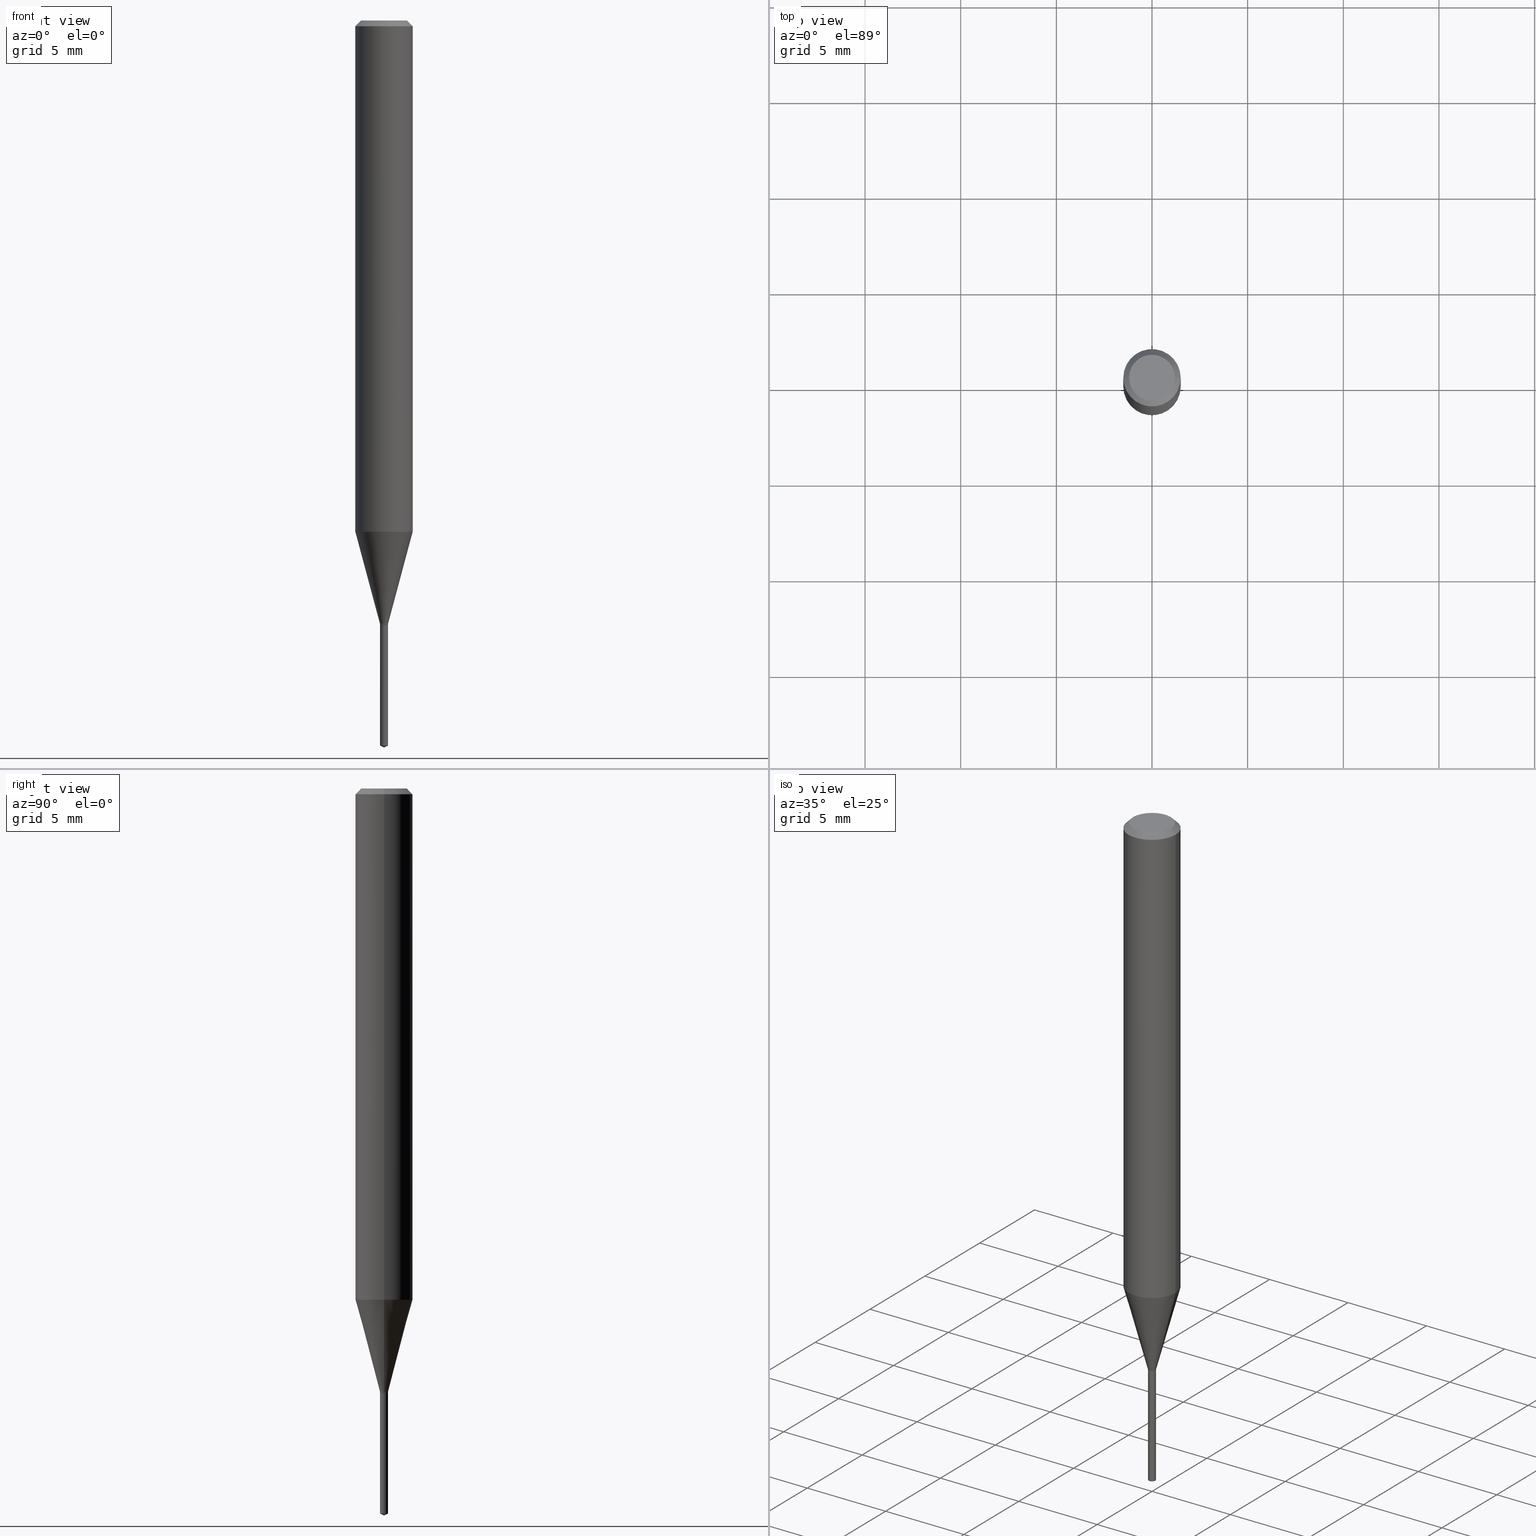
[diagram: canonical four-view strip — front | top / right | iso, engineering-drawing reading convention]
A machine part, canonical four-view strip (front | top / right | iso — engineering-drawing reading convention). The complete STEP part file that produces these views, byte-faithful:
ISO-10303-21;
HEADER;
FILE_DESCRIPTION (( 'STEP AP203' ),
    '1' );
FILE_NAME ('08083.STEP',
    '2024-04-24T10:56:58',
    ( '' ),
    ( '' ),
    'SwSTEP 2.0',
    'SolidWorks 2023',
    '' );
FILE_SCHEMA (( 'CONFIG_CONTROL_DESIGN' ));
ENDSEC;

DATA;
#1 = ORIENTED_EDGE ( 'NONE', *, *, #370, .F. ) ;
#2 = CALENDAR_DATE ( 2024, 24, 4 ) ;
#3 = CARTESIAN_POINT ( 'NONE',  ( -0.007749999999999999944, -4.288684871633349930E-15, -1.244099999999999984 ) ) ;
#4 = EDGE_LOOP ( 'NONE', ( #453, #485, #127 ) ) ;
#5 = AXIS2_PLACEMENT_3D ( 'NONE', #240, #206, #481 ) ;
#6 = CYLINDRICAL_SURFACE ( 'NONE', #276, 0.05905000000000006771 ) ;
#7 = ORIENTED_EDGE ( 'NONE', *, *, #307, .F. ) ;
#8 = ADVANCED_FACE ( 'NONE', ( #123 ), #376, .T. ) ;
#9 = FACE_OUTER_BOUND ( 'NONE', #11, .T. ) ;
#10 = ORIENTED_EDGE ( 'NONE', *, *, #320, .F. ) ;
#11 = EDGE_LOOP ( 'NONE', ( #442, #222, #200, #400 ) ) ;
#12 = EDGE_CURVE ( 'NONE', #68, #466, #229, .T. ) ;
#13 = EDGE_CURVE ( 'NONE', #449, #294, #167, .T. ) ;
#14 = CARTESIAN_POINT ( 'NONE',  ( 0.05904999999999999832, -4.463468013801466955E-16, -0.01181000000000007218 ) ) ;
#15 = DIRECTION ( 'NONE',  ( -2.445468806185136597E-29, 3.491481338843145583E-15, 1.000000000000000000 ) ) ;
#16 = DIRECTION ( 'NONE',  ( -6.982962677686265133E-15, -1.000000000000000000, 0.000000000000000000 ) ) ;
#17 = CARTESIAN_POINT ( 'NONE',  ( 2.888098660104664204E-31, -4.123439461173780263E-17, -0.01181000000000007218 ) ) ;
#18 = AXIS2_PLACEMENT_3D ( 'NONE', #345, #310, #463 ) ;
#19 = VECTOR ( 'NONE', #377, 39.37007874015748143 ) ;
#20 = PRODUCT_DEFINITION_SHAPE ( 'NONE', 'NONE',  #374 ) ;
#21 = DIRECTION ( 'NONE',  ( -2.445468806185136597E-29, 3.491481338843145583E-15, 1.000000000000000000 ) ) ;
#22 =( CONVERSION_BASED_UNIT ( 'INCH', #355 ) LENGTH_UNIT ( ) NAMED_UNIT ( #348 ) );
#23 = EDGE_CURVE ( 'NONE', #462, #70, #383, .T. ) ;
#24 = EDGE_CURVE ( 'NONE', #186, #271, #382, .T. ) ;
#25 = CIRCLE ( 'NONE', #337, 0.05904999999999999832 ) ;
#26 = AXIS2_PLACEMENT_3D ( 'NONE', #122, #197, #272 ) ;
#27 = APPLICATION_PROTOCOL_DEFINITION ( 'international standard', 'config_control_design', 1994, #297 ) ;
#28 = DIRECTION ( 'NONE',  ( -6.328713451373352024E-15, -0.9063077870366461619, 0.4226182617407073239 ) ) ;
#29 = ORIENTED_EDGE ( 'NONE', *, *, #231, .T. ) ;
#30 = DATE_AND_TIME ( #287, #347 ) ;
#31 = CARTESIAN_POINT ( 'NONE',  ( -5.760944209088126808E-17, -0.008250000000004344136, -1.244099999999999984 ) ) ;
#32 = PERSON_AND_ORGANIZATION_ROLE ( 'creator' ) ;
#33 = DIRECTION ( 'NONE',  ( -2.445468806185136597E-29, 3.491481338843145583E-15, 1.000000000000000000 ) ) ;
#34 = DIRECTION ( 'NONE',  ( 2.445468806185136597E-29, -3.491481338843145583E-15, -1.000000000000000000 ) ) ;
#35 = ORIENTED_EDGE ( 'NONE', *, *, #93, .T. ) ;
#36 = SHAPE_DEFINITION_REPRESENTATION ( #20, #432 ) ;
#37 = CARTESIAN_POINT ( 'NONE',  ( 3.042407741774928155E-29, -4.343751933654757151E-15, -1.244099999999999984 ) ) ;
#38 = VERTEX_POINT ( 'NONE', #31 ) ;
#39 = LINE ( 'NONE', #191, #98 ) ;
#40 = EDGE_CURVE ( 'NONE', #271, #160, #25, .T. ) ;
#41 = ORIENTED_EDGE ( 'NONE', *, *, #78, .T. ) ;
#42 = VECTOR ( 'NONE', #95, 39.37007874015748143 ) ;
#43 = DIRECTION ( 'NONE',  ( -2.445468806185136597E-29, 3.491481338843145583E-15, 1.000000000000000000 ) ) ;
#44 = ORIENTED_EDGE ( 'NONE', *, *, #13, .T. ) ;
#45 = DIRECTION ( 'NONE',  ( -2.445453018118844559E-29, 3.491503948252676758E-15, 1.000000000000000000 ) ) ;
#46 = CARTESIAN_POINT ( 'NONE',  ( 2.888098660104664204E-31, -4.123439461173780263E-17, -0.01181000000000007218 ) ) ;
#47 = ADVANCED_FACE ( 'NONE', ( #91 ), #169, .T. ) ;
#48 = ADVANCED_FACE ( 'NONE', ( #177 ), #67, .F. ) ;
#49 = CARTESIAN_POINT ( 'NONE',  ( -9.261901597635378744E-28, 1.322371744356641908E-13, 37.87397874015748300 ) ) ;
#50 = ORIENTED_EDGE ( 'NONE', *, *, #23, .F. ) ;
#51 = CYLINDRICAL_SURFACE ( 'NONE', #72, 0.008250000000000000389 ) ;
#52 = CIRCLE ( 'NONE', #226, 0.008250000000000000389 ) ;
#53 = CARTESIAN_POINT ( 'NONE',  ( 3.042407741774928155E-29, -4.343751933654757151E-15, -1.244099999999999984 ) ) ;
#54 = DIRECTION ( 'NONE',  ( 2.445453018118844559E-29, -3.491503948252676363E-15, -1.000000000000000000 ) ) ;
#55 = CARTESIAN_POINT ( 'NONE',  ( -0.04724000000000000421, 3.504923541997677355E-16, -3.380025165670481712E-19 ) ) ;
#56 = DIRECTION ( 'NONE',  ( -6.982962677686265133E-15, -1.000000000000000000, 0.000000000000000000 ) ) ;
#57 = AXIS2_PLACEMENT_3D ( 'NONE', #318, #142, #388 ) ;
#58 = AXIS2_PLACEMENT_3D ( 'NONE', #223, #34, #217 ) ;
#59 = EDGE_CURVE ( 'NONE', #294, #449, #471, .T. ) ;
#60 = CALENDAR_DATE ( 2024, 24, 4 ) ;
#61 =( NAMED_UNIT ( * ) PLANE_ANGLE_UNIT ( ) SI_UNIT ( $, .RADIAN. ) );
#62 = CARTESIAN_POINT ( 'NONE',  ( 0.008250000000000000389, -4.392632672398560829E-15, -1.241600000000000037 ) ) ;
#63 = VECTOR ( 'NONE', #28, 39.37007874015748854 ) ;
#64 = AXIS2_PLACEMENT_3D ( 'NONE', #233, #21, #474 ) ;
#65 = ORIENTED_EDGE ( 'NONE', *, *, #232, .T. ) ;
#66 = APPROVAL_DATE_TIME ( #317, #303 ) ;
#67 = PLANE ( 'NONE',  #296 ) ;
#68 = VERTEX_POINT ( 'NONE', #278 ) ;
#69 = DIRECTION ( 'NONE',  ( 1.000000000000000000, -6.982962677686266711E-15, 4.876176775795936353E-29 ) ) ;
#70 = VERTEX_POINT ( 'NONE', #212 ) ;
#71 = CARTESIAN_POINT ( 'NONE',  ( 0.000000000000000000, 0.000000000000000000, 0.000000000000000000 ) ) ;
#72 = AXIS2_PLACEMENT_3D ( 'NONE', #129, #202, #265 ) ;
#73 = LOCAL_TIME ( 6, 56, 58.00000000000000000, #254 ) ;
#74 = SECURITY_CLASSIFICATION_LEVEL ( 'unclassified' ) ;
#75 = DIRECTION ( 'NONE',  ( 1.000000000000000000, -6.982962677686266711E-15, 4.876185090822587894E-29 ) ) ;
#76 = ORIENTED_EDGE ( 'NONE', *, *, #107, .F. ) ;
#77 = DIRECTION ( 'NONE',  ( -2.445468806185136597E-29, 3.491481338843145583E-15, 1.000000000000000000 ) ) ;
#78 = EDGE_CURVE ( 'NONE', #466, #488, #327, .T. ) ;
#79 = ORIENTED_EDGE ( 'NONE', *, *, #148, .T. ) ;
#80 = DIRECTION ( 'NONE',  ( -2.445468806185136597E-29, 3.491481338843145583E-15, 1.000000000000000000 ) ) ;
#81 = EDGE_LOOP ( 'NONE', ( #76, #269, #358, #158 ) ) ;
#82 = APPROVAL_PERSON_ORGANIZATION ( #99, #303, #211 ) ;
#83 = MANIFOLD_SOLID_BREP ( 'Body-Move/Copy2[1]', #321 ) ;
#84 = CARTESIAN_POINT ( 'NONE',  ( 3.042407741774928155E-29, -4.343751933654757151E-15, -1.244099999999999984 ) ) ;
#85 = ORIENTED_EDGE ( 'NONE', *, *, #59, .F. ) ;
#86 = EDGE_CURVE ( 'NONE', #299, #462, #435, .T. ) ;
#87 = DIRECTION ( 'NONE',  ( -2.445468806185136877E-29, 3.491481338843145188E-15, 1.000000000000000000 ) ) ;
#88 = VERTEX_POINT ( 'NONE', #390 ) ;
#89 = LINE ( 'NONE', #350, #124 ) ;
#90 = VECTOR ( 'NONE', #166, 39.37007874015748143 ) ;
#91 = FACE_OUTER_BOUND ( 'NONE', #292, .T. ) ;
#92 = CARTESIAN_POINT ( 'NONE',  ( -0.05905000000000006771, 4.195754854663396409E-16, -2.904631170795525045E-30 ) ) ;
#93 = EDGE_CURVE ( 'NONE', #478, #160, #89, .T. ) ;
#94 = CARTESIAN_POINT ( 'NONE',  ( 3.042407741774928155E-29, -4.343751933654757151E-15, -1.244099999999999984 ) ) ;
#95 = DIRECTION ( 'NONE',  ( -2.445468806185136877E-29, 3.491481338843145188E-15, 1.000000000000000000 ) ) ;
#96 = PERSON_AND_ORGANIZATION ( #133, #340 ) ;
#97 = CONICAL_SURFACE ( 'NONE', #64, 0.007749999999999999944, 0.7853981633975496424 ) ;
#98 = VECTOR ( 'NONE', #338, 39.37007874015748143 ) ;
#99 = PERSON_AND_ORGANIZATION ( #133, #340 ) ;
#100 = ORIENTED_EDGE ( 'NONE', *, *, #107, .T. ) ;
#101 = UNCERTAINTY_MEASURE_WITH_UNIT (LENGTH_MEASURE( 1.000000000000000082E-05 ), #22, 'distance_accuracy_value', 'NONE');
#102 = CARTESIAN_POINT ( 'NONE',  ( 2.888098660104664204E-31, -4.123439461173780263E-17, -0.01181000000000007218 ) ) ;
#103 = CLOSED_SHELL ( 'NONE', ( #149, #8, #357, #263, #215, #282, #300, #387, #281, #465, #319, #428 ) ) ;
#104 = CIRCLE ( 'NONE', #309, 0.05905000000000013710 ) ;
#105 = CALENDAR_DATE ( 2024, 24, 4 ) ;
#106 = DIRECTION ( 'NONE',  ( -2.445468806185136597E-29, 3.491481338843145583E-15, 1.000000000000000000 ) ) ;
#107 = EDGE_CURVE ( 'NONE', #294, #267, #484, .T. ) ;
#108 = EDGE_LOOP ( 'NONE', ( #118, #175, #408, #283 ) ) ;
#109 = PERSON_AND_ORGANIZATION_ROLE ( 'creator' ) ;
#110 = DIRECTION ( 'NONE',  ( 1.000000000000000000, -6.982962677686266711E-15, 4.876176775795935793E-29 ) ) ;
#111 = DATE_TIME_ROLE ( 'classification_date' ) ;
#112 = DIRECTION ( 'NONE',  ( -2.445453018118844559E-29, 3.491503948252676758E-15, 1.000000000000000000 ) ) ;
#113 = EDGE_LOOP ( 'NONE', ( #79, #150 ) ) ;
#114 = EDGE_CURVE ( 'NONE', #88, #466, #274, .T. ) ;
#115 = LOCAL_TIME ( 6, 56, 58.00000000000000000, #119 ) ;
#116 = APPROVAL_ROLE ( '' ) ;
#117 = FACE_OUTER_BOUND ( 'NONE', #108, .T. ) ;
#118 = ORIENTED_EDGE ( 'NONE', *, *, #370, .T. ) ;
#119 = COORDINATED_UNIVERSAL_TIME_OFFSET ( 5, 0, .BEHIND. ) ;
#120 = CARTESIAN_POINT ( 'NONE',  ( 3.036294069759465269E-29, -4.335023230307649634E-15, -1.241600000000000037 ) ) ;
#121 = DIRECTION ( 'NONE',  ( 6.439704144417007476E-15, 0.9063077870366490485, 0.4226182617407009956 ) ) ;
#122 = CARTESIAN_POINT ( 'NONE',  ( -9.261901597635378744E-28, 1.322371744356641908E-13, 37.87397874015748300 ) ) ;
#123 = FACE_OUTER_BOUND ( 'NONE', #302, .T. ) ;
#124 = VECTOR ( 'NONE', #324, 39.37007874015748143 ) ;
#125 = AXIS2_PLACEMENT_3D ( 'NONE', #155, #301, #147 ) ;
#126 = DIRECTION ( 'NONE',  ( 1.000000000000000000, -6.982962677686266711E-15, 4.876185090822587894E-29 ) ) ;
#127 = ORIENTED_EDGE ( 'NONE', *, *, #270, .F. ) ;
#128 = EDGE_LOOP ( 'NONE', ( #213, #227, #363, #305 ) ) ;
#129 = CARTESIAN_POINT ( 'NONE',  ( 3.042407741774928155E-29, -4.343751933654757151E-15, -1.244099999999999984 ) ) ;
#130 = CYLINDRICAL_SURFACE ( 'NONE', #244, 0.008250000000000000389 ) ;
#131 = AXIS2_PLACEMENT_3D ( 'NONE', #264, #198, #380 ) ;
#132 = CC_DESIGN_APPROVAL ( #303, ( #374 ) ) ;
#133 = PERSON ( 'UNSPECIFIED', 'UNSPECIFIED', 'UNSPECIFIED', ('UNSPECIFIED'), ('UNSPECIFIED'), ('UNSPECIFIED') ) ;
#134 = VECTOR ( 'NONE', #361, 39.37007874015748854 ) ;
#135 = DIRECTION ( 'NONE',  ( 1.000000000000000000, -6.982962677686266711E-15, 0.000000000000000000 ) ) ;
#136 = CARTESIAN_POINT ( 'NONE',  ( 2.572662087042671903E-29, -3.673079634195394404E-15, -1.052011818975500779 ) ) ;
#137 = EDGE_CURVE ( 'NONE', #160, #271, #181, .T. ) ;
#138 = AXIS2_PLACEMENT_3D ( 'NONE', #214, #151, #75 ) ;
#139 = APPROVAL_PERSON_ORGANIZATION ( #141, #242, #116 ) ;
#140 = DIRECTION ( 'NONE',  ( -2.445468806185136597E-29, 3.491481338843145583E-15, 1.000000000000000000 ) ) ;
#141 = PERSON_AND_ORGANIZATION ( #133, #340 ) ;
#142 = DIRECTION ( 'NONE',  ( -2.445468806185136597E-29, 3.491481338843145583E-15, 1.000000000000000000 ) ) ;
#143 = CONICAL_SURFACE ( 'NONE', #392, 0.008250000000000000389, 0.2617993877991499074 ) ;
#144 = ORIENTED_EDGE ( 'NONE', *, *, #232, .F. ) ;
#145 = DIRECTION ( 'NONE',  ( -2.445468806185136597E-29, 3.491481338843145583E-15, 1.000000000000000000 ) ) ;
#146 = EDGE_LOOP ( 'NONE', ( #219, #252, #445, #482 ) ) ;
#147 = DIRECTION ( 'NONE',  ( -6.982962677686265133E-15, -1.000000000000000000, 0.000000000000000000 ) ) ;
#148 = EDGE_CURVE ( 'NONE', #38, #488, #430, .T. ) ;
#149 = ADVANCED_FACE ( 'NONE', ( #353 ), #97, .T. ) ;
#150 = ORIENTED_EDGE ( 'NONE', *, *, #307, .T. ) ;
#151 = DIRECTION ( 'NONE',  ( -2.445468806185136597E-29, 3.491481338843145583E-15, 1.000000000000000000 ) ) ;
#152 = ORIENTED_EDGE ( 'NONE', *, *, #231, .F. ) ;
#153 = CC_DESIGN_PERSON_AND_ORGANIZATION_ASSIGNMENT ( #289, #405, ( #173 ) ) ;
#154 = PERSON_AND_ORGANIZATION_ROLE ( 'classification_officer' ) ;
#155 = CARTESIAN_POINT ( 'NONE',  ( 3.042407741774928155E-29, -4.343751933654757151E-15, -1.244099999999999984 ) ) ;
#156 = ORIENTED_EDGE ( 'NONE', *, *, #40, .T. ) ;
#157 = PLANE ( 'NONE',  #446 ) ;
#158 = ORIENTED_EDGE ( 'NONE', *, *, #170, .F. ) ;
#159 = CC_DESIGN_PERSON_AND_ORGANIZATION_ASSIGNMENT ( #455, #154, ( #378 ) ) ;
#160 = VERTEX_POINT ( 'NONE', #210 ) ;
#161 = AXIS2_PLACEMENT_3D ( 'NONE', #251, #487, #126 ) ;
#162 = CARTESIAN_POINT ( 'NONE',  ( 0.05905000000000006771, -4.123439461173745257E-16, 2.879382386107503723E-30 ) ) ;
#163 = VERTEX_POINT ( 'NONE', #385 ) ;
#164 = LINE ( 'NONE', #433, #63 ) ;
#165 = FACE_OUTER_BOUND ( 'NONE', #461, .T. ) ;
#166 = DIRECTION ( 'NONE',  ( -2.445453018118844278E-29, 3.491503948252676363E-15, 1.000000000000000000 ) ) ;
#167 = CIRCLE ( 'NONE', #131, 0.008250000000000000389 ) ;
#168 = AXIS2_PLACEMENT_3D ( 'NONE', #260, #112, #371 ) ;
#169 = CYLINDRICAL_SURFACE ( 'NONE', #328, 0.008250000000000000389 ) ;
#170 = EDGE_CURVE ( 'NONE', #267, #163, #275, .T. ) ;
#171 = MECHANICAL_CONTEXT ( 'NONE', #246, 'mechanical' ) ;
#172 = VECTOR ( 'NONE', #304, 39.37007874015748143 ) ;
#173 = PRODUCT_DEFINITION_FORMATION_WITH_SPECIFIED_SOURCE ( 'ANY', '', #436, .NOT_KNOWN. ) ;
#174 = FACE_OUTER_BOUND ( 'NONE', #146, .T. ) ;
#175 = ORIENTED_EDGE ( 'NONE', *, *, #452, .T. ) ;
#176 = EDGE_CURVE ( 'NONE', #68, #88, #164, .T. ) ;
#177 = FACE_OUTER_BOUND ( 'NONE', #113, .T. ) ;
#178 = ORIENTED_EDGE ( 'NONE', *, *, #247, .T. ) ;
#179 = DESIGN_CONTEXT ( 'detailed design', #297, 'design' ) ;
#180 = DIRECTION ( 'NONE',  ( 1.000000000000000000, -6.982962677686303787E-15, 0.000000000000000000 ) ) ;
#181 = CIRCLE ( 'NONE', #359, 0.05904999999999999832 ) ;
#182 = AXIS2_PLACEMENT_3D ( 'NONE', #37, #187, #342 ) ;
#183 = ORIENTED_EDGE ( 'NONE', *, *, #356, .T. ) ;
#184 = EDGE_CURVE ( 'NONE', #462, #449, #280, .T. ) ;
#185 = CARTESIAN_POINT ( 'NONE',  ( 3.042407741774928155E-29, -4.343751933654757151E-15, -1.244099999999999984 ) ) ;
#186 = VERTEX_POINT ( 'NONE', #241 ) ;
#187 = DIRECTION ( 'NONE',  ( -2.438088387897960049E-29, 3.491481338843145188E-15, 1.000000000000000000 ) ) ;
#188 = CC_DESIGN_DATE_AND_TIME_ASSIGNMENT ( #30, #220, ( #374 ) ) ;
#189 = VERTEX_POINT ( 'NONE', #314 ) ;
#190 = APPROVAL_ROLE ( '' ) ;
#191 = CARTESIAN_POINT ( 'NONE',  ( -5.760944209088126808E-17, -0.008250000000004344136, -1.244099999999999984 ) ) ;
#192 = CIRCLE ( 'NONE', #138, 0.04724000000000000421 ) ;
#193 = ORIENTED_EDGE ( 'NONE', *, *, #203, .F. ) ;
#194 = CC_DESIGN_APPROVAL ( #237, ( #173 ) ) ;
#195 = DIRECTION ( 'NONE',  ( 1.000000000000000000, -6.982962677686264344E-15, 0.000000000000000000 ) ) ;
#196 = ORIENTED_EDGE ( 'NONE', *, *, #24, .F. ) ;
#197 = DIRECTION ( 'NONE',  ( -2.445453018118844559E-29, 3.491503948252676758E-15, 1.000000000000000000 ) ) ;
#198 = DIRECTION ( 'NONE',  ( -2.445468806185136597E-29, 3.491481338843145583E-15, 1.000000000000000000 ) ) ;
#199 = FACE_OUTER_BOUND ( 'NONE', #128, .T. ) ;
#200 = ORIENTED_EDGE ( 'NONE', *, *, #443, .T. ) ;
#201 = VECTOR ( 'NONE', #87, 39.37007874015748143 ) ;
#202 = DIRECTION ( 'NONE',  ( -2.445453018118844559E-29, 3.491503948252676758E-15, 1.000000000000000000 ) ) ;
#203 = EDGE_CURVE ( 'NONE', #449, #163, #468, .T. ) ;
#204 = CARTESIAN_POINT ( 'NONE',  ( 3.042407741774928155E-29, -4.343751933654757151E-15, -1.244099999999999984 ) ) ;
#205 = CARTESIAN_POINT ( 'NONE',  ( 0.007749999999999999944, -4.397869894406826129E-15, -1.244099999999999984 ) ) ;
#206 = DIRECTION ( 'NONE',  ( -2.445453018118844559E-29, 3.491503948252676758E-15, 1.000000000000000000 ) ) ;
#207 = VECTOR ( 'NONE', #426, 39.37007874015748143 ) ;
#208 = AXIS2_PLACEMENT_3D ( 'NONE', #185, #364, #290 ) ;
#209 =( NAMED_UNIT ( * ) SI_UNIT ( $, .STERADIAN. ) SOLID_ANGLE_UNIT ( ) );
#210 = CARTESIAN_POINT ( 'NONE',  ( -0.05904999999999999832, -1.437581528937225982E-15, -0.01181000000000007218 ) ) ;
#211 = APPROVAL_ROLE ( '' ) ;
#212 = CARTESIAN_POINT ( 'NONE',  ( -0.008250000000000000389, -4.279894935946284521E-15, -1.243600000000000039 ) ) ;
#213 = ORIENTED_EDGE ( 'NONE', *, *, #356, .F. ) ;
#214 = CARTESIAN_POINT ( 'NONE',  ( 8.265746106709734507E-48, -1.180129479067563789E-33, -3.380025165646692144E-19 ) ) ;
#215 = ADVANCED_FACE ( 'NONE', ( #174 ), #130, .T. ) ;
#216 = PERSON_AND_ORGANIZATION ( #133, #340 ) ;
#217 = DIRECTION ( 'NONE',  ( -1.000000000000000000, 6.982962677686266711E-15, 0.000000000000000000 ) ) ;
#218 = CONICAL_SURFACE ( 'NONE', #411, 0.007749999999999999944, 0.7853981633975496424 ) ;
#219 = ORIENTED_EDGE ( 'NONE', *, *, #23, .T. ) ;
#220 = DATE_TIME_ROLE ( 'creation_date' ) ;
#221 = CARTESIAN_POINT ( 'NONE',  ( 3.036294069759465269E-29, -4.335023230307649634E-15, -1.241600000000000037 ) ) ;
#222 = ORIENTED_EDGE ( 'NONE', *, *, #170, .T. ) ;
#223 = CARTESIAN_POINT ( 'NONE',  ( 2.888098660104664204E-31, -4.123439461173780263E-17, -0.01181000000000007218 ) ) ;
#224 = EDGE_LOOP ( 'NONE', ( #369, #178, #258, #85 ) ) ;
#225 = DIRECTION ( 'NONE',  ( 1.000000000000000000, -6.982962677686266711E-15, 4.876176775795936353E-29 ) ) ;
#226 = AXIS2_PLACEMENT_3D ( 'NONE', #450, #253, #180 ) ;
#227 = ORIENTED_EDGE ( 'NONE', *, *, #409, .T. ) ;
#228 = DIRECTION ( 'NONE',  ( -2.445468806185136877E-29, 3.491481338843145188E-15, 1.000000000000000000 ) ) ;
#229 = LINE ( 'NONE', #459, #234 ) ;
#230 = ORIENTED_EDGE ( 'NONE', *, *, #148, .F. ) ;
#231 = EDGE_CURVE ( 'NONE', #186, #478, #192, .T. ) ;
#232 = EDGE_CURVE ( 'NONE', #299, #189, #266, .T. ) ;
#233 = CARTESIAN_POINT ( 'NONE',  ( 3.042407741774928155E-29, -4.343751933654757151E-15, -1.244099999999999984 ) ) ;
#234 = VECTOR ( 'NONE', #121, 39.37007874015748854 ) ;
#235 = CONICAL_SURFACE ( 'NONE', #26, 84.42940631927278616, 1.134464013796308901 ) ;
#236 = CARTESIAN_POINT ( 'NONE',  ( 4.132873053354867254E-48, -5.900647395337818946E-34, -1.690012582823346072E-19 ) ) ;
#237 = APPROVAL ( #483, 'UNSPECIFIED' ) ;
#238 = CARTESIAN_POINT ( 'NONE',  ( 0.008250000000000000389, -5.760944209091170086E-17, 4.022845840031647239E-31 ) ) ;
#239 = CARTESIAN_POINT ( 'NONE',  ( 0.008250000000000000389, -4.399615635076248421E-15, -1.243600000000000039 ) ) ;
#240 = CARTESIAN_POINT ( 'NONE',  ( 3.649254151213318741E-29, -5.210178979620655699E-15, -1.492252961820221158 ) ) ;
#241 = CARTESIAN_POINT ( 'NONE',  ( 0.04724000000000000421, -3.852183633974369345E-16, -3.380025165621689721E-19 ) ) ;
#242 = APPROVAL ( #489, 'UNSPECIFIED' ) ;
#243 = AXIS2_PLACEMENT_3D ( 'NONE', #94, #249, #16 ) ;
#244 = AXIS2_PLACEMENT_3D ( 'NONE', #273, #33, #293 ) ;
#245 = PERSON_AND_ORGANIZATION ( #133, #340 ) ;
#246 = APPLICATION_CONTEXT ( 'configuration controlled 3d designs of mechanical parts and assemblies' ) ;
#247 = EDGE_CURVE ( 'NONE', #70, #462, #52, .T. ) ;
#248 = EDGE_LOOP ( 'NONE', ( #44, #100, #1, #193 ) ) ;
#249 = DIRECTION ( 'NONE',  ( -2.445453018118844559E-29, 3.491503948252676758E-15, 1.000000000000000000 ) ) ;
#250 = ORIENTED_EDGE ( 'NONE', *, *, #12, .T. ) ;
#251 = CARTESIAN_POINT ( 'NONE',  ( 8.265746106709734507E-48, -1.180129479067563789E-33, -3.380025165646692144E-19 ) ) ;
#252 = ORIENTED_EDGE ( 'NONE', *, *, #427, .T. ) ;
#253 = DIRECTION ( 'NONE',  ( -2.445468806185136597E-29, 3.491481338843145583E-15, 1.000000000000000000 ) ) ;
#254 = COORDINATED_UNIVERSAL_TIME_OFFSET ( 5, 0, .BEHIND. ) ;
#255 = CYLINDRICAL_SURFACE ( 'NONE', #431, 0.008250000000000000389 ) ;
#256 = AXIS2_PLACEMENT_3D ( 'NONE', #49, #45, #268 ) ;
#257 = CC_DESIGN_SECURITY_CLASSIFICATION ( #378, ( #173 ) ) ;
#258 = ORIENTED_EDGE ( 'NONE', *, *, #184, .T. ) ;
#259 = DATE_AND_TIME ( #334, #73 ) ;
#260 = CARTESIAN_POINT ( 'NONE',  ( 3.649254151213318741E-29, -5.210178979620655699E-15, -1.492252961820221158 ) ) ;
#261 = ORIENTED_EDGE ( 'NONE', *, *, #270, .T. ) ;
#262 = CARTESIAN_POINT ( 'NONE',  ( -0.008250000000000000389, -4.279894935946284521E-15, -1.241600000000000037 ) ) ;
#263 = ADVANCED_FACE ( 'NONE', ( #295 ), #354, .T. ) ;
#264 = CARTESIAN_POINT ( 'NONE',  ( 3.036294069759465269E-29, -4.335023230307649634E-15, -1.241600000000000037 ) ) ;
#265 = DIRECTION ( 'NONE',  ( -6.982962677686265133E-15, -1.000000000000000000, 0.000000000000000000 ) ) ;
#266 = CIRCLE ( 'NONE', #208, 0.007749999999999999944 ) ;
#267 = VERTEX_POINT ( 'NONE', #332 ) ;
#268 = DIRECTION ( 'NONE',  ( -6.982962677686268288E-15, -1.000000000000000000, 3.520397390770518557E-15 ) ) ;
#269 = ORIENTED_EDGE ( 'NONE', *, *, #59, .T. ) ;
#270 = EDGE_CURVE ( 'NONE', #466, #88, #316, .T. ) ;
#271 = VERTEX_POINT ( 'NONE', #457 ) ;
#272 = DIRECTION ( 'NONE',  ( -6.982962677686268288E-15, -1.000000000000000000, 3.520397390770518557E-15 ) ) ;
#273 = CARTESIAN_POINT ( 'NONE',  ( 0.000000000000000000, 0.000000000000000000, 0.000000000000000000 ) ) ;
#274 = CIRCLE ( 'NONE', #5, 0.008250000000000000389 ) ;
#275 = CIRCLE ( 'NONE', #395, 0.05905000000000013710 ) ;
#276 = AXIS2_PLACEMENT_3D ( 'NONE', #460, #80, #225 ) ;
#277 = FACE_OUTER_BOUND ( 'NONE', #322, .T. ) ;
#278 = CARTESIAN_POINT ( 'NONE',  ( 3.658642260407602849E-29, -5.223639056980828932E-15, -1.496099999999999985 ) ) ;
#279 = PRODUCT_RELATED_PRODUCT_CATEGORY ( 'detail', '', ( #436 ) ) ;
#280 = LINE ( 'NONE', #238, #42 ) ;
#281 = ADVANCED_FACE ( 'NONE', ( #490 ), #384, .T. ) ;
#282 = ADVANCED_FACE ( 'NONE', ( #416 ), #255, .T. ) ;
#283 = ORIENTED_EDGE ( 'NONE', *, *, #443, .F. ) ;
#284 = CC_DESIGN_PERSON_AND_ORGANIZATION_ASSIGNMENT ( #415, #109, ( #173 ) ) ;
#285 = DIRECTION ( 'NONE',  ( 6.982962677686265922E-15, 1.000000000000000000, -3.491503948252676363E-15 ) ) ;
#286 = ORIENTED_EDGE ( 'NONE', *, *, #78, .F. ) ;
#287 = CALENDAR_DATE ( 2024, 24, 4 ) ;
#288 = DIRECTION ( 'NONE',  ( 1.000000000000000000, -6.982962677686243834E-15, 0.000000000000000000 ) ) ;
#289 = PERSON_AND_ORGANIZATION ( #133, #340 ) ;
#290 = DIRECTION ( 'NONE',  ( 1.000000000000000000, -6.982962677686238312E-15, 0.000000000000000000 ) ) ;
#291 = CC_DESIGN_PERSON_AND_ORGANIZATION_ASSIGNMENT ( #96, #437, ( #436 ) ) ;
#292 = EDGE_LOOP ( 'NONE', ( #396, #41, #230, #10 ) ) ;
#293 = DIRECTION ( 'NONE',  ( 1.000000000000000000, -6.982962677686266711E-15, 4.876176775795935793E-29 ) ) ;
#294 = VERTEX_POINT ( 'NONE', #262 ) ;
#295 = FACE_OUTER_BOUND ( 'NONE', #248, .T. ) ;
#296 = AXIS2_PLACEMENT_3D ( 'NONE', #53, #54, #285 ) ;
#297 = APPLICATION_CONTEXT ( 'configuration controlled 3d designs of mechanical parts and assemblies' ) ;
#298 = AXIS2_PLACEMENT_3D ( 'NONE', #475, #441, #480 ) ;
#299 = VERTEX_POINT ( 'NONE', #418 ) ;
#300 = ADVANCED_FACE ( 'NONE', ( #367 ), #143, .T. ) ;
#301 = DIRECTION ( 'NONE',  ( -2.445453018118844559E-29, 3.491503948252676758E-15, 1.000000000000000000 ) ) ;
#302 = EDGE_LOOP ( 'NONE', ( #152, #414, #156, #343 ) ) ;
#303 = APPROVAL ( #393, 'UNSPECIFIED' ) ;
#304 = DIRECTION ( 'NONE',  ( -2.445468806185136877E-29, 3.491481338843145188E-15, 1.000000000000000000 ) ) ;
#305 = ORIENTED_EDGE ( 'NONE', *, *, #247, .F. ) ;
#306 = CARTESIAN_POINT ( 'NONE',  ( 0.008250000000000000389, -4.392632672398560829E-15, -1.241600000000000037 ) ) ;
#307 = EDGE_CURVE ( 'NONE', #488, #38, #397, .T. ) ;
#308 = AXIS2_PLACEMENT_3D ( 'NONE', #46, #423, #336 ) ;
#309 = AXIS2_PLACEMENT_3D ( 'NONE', #402, #43, #195 ) ;
#310 = DIRECTION ( 'NONE',  ( -2.445468806185136597E-29, 3.491481338843145583E-15, 1.000000000000000000 ) ) ;
#311 = DIRECTION ( 'NONE',  ( -1.000000000000000000, 6.982962677686265922E-15, -4.876176775795935793E-29 ) ) ;
#312 = DIRECTION ( 'NONE',  ( 0.7071067811865453523, -7.319954787623248157E-15, -0.7071067811865496822 ) ) ;
#313 = CARTESIAN_POINT ( 'NONE',  ( 3.042407741774928155E-29, -4.343751933654757151E-15, -1.244099999999999984 ) ) ;
#314 = CARTESIAN_POINT ( 'NONE',  ( -0.007749999999999999944, -4.286035644459238729E-15, -1.244099999999999984 ) ) ;
#315 = DIRECTION ( 'NONE',  ( -0.2588190451025211836, 5.211531920934547886E-15, 0.9659258262890679791 ) ) ;
#316 = CIRCLE ( 'NONE', #168, 0.008250000000000000389 ) ;
#317 = DATE_AND_TIME ( #60, #339 ) ;
#318 = CARTESIAN_POINT ( 'NONE',  ( 3.036294069759465269E-29, -4.335023230307649634E-15, -1.241600000000000037 ) ) ;
#319 = ADVANCED_FACE ( 'NONE', ( #454 ), #412, .F. ) ;
#320 = EDGE_CURVE ( 'NONE', #88, #38, #39, .T. ) ;
#321 = CLOSED_SHELL ( 'NONE', ( #47, #451, #479, #407, #48 ) ) ;
#322 = EDGE_LOOP ( 'NONE', ( #341, #250, #419 ) ) ;
#323 = COORDINATED_UNIVERSAL_TIME_OFFSET ( 5, 0, .BEHIND. ) ;
#324 = DIRECTION ( 'NONE',  ( -0.7071067811865453523, 2.468850131082234184E-15, -0.7071067811865496822 ) ) ;
#325 = ORIENTED_EDGE ( 'NONE', *, *, #320, .T. ) ;
#326 = COORDINATED_UNIVERSAL_TIME_OFFSET ( 5, 0, .BEHIND. ) ;
#327 = LINE ( 'NONE', #444, #90 ) ;
#328 = AXIS2_PLACEMENT_3D ( 'NONE', #204, #398, #56 ) ;
#329 = AXIS2_PLACEMENT_3D ( 'NONE', #221, #145, #406 ) ;
#330 = CYLINDRICAL_SURFACE ( 'NONE', #366, 0.05905000000000006771 ) ;
#331 = APPROVAL_DATE_TIME ( #486, #242 ) ;
#332 = CARTESIAN_POINT ( 'NONE',  ( -0.05905000000000013710, -3.253504148729054517E-15, -1.052011818975500779 ) ) ;
#333 = ORIENTED_EDGE ( 'NONE', *, *, #399, .F. ) ;
#334 = CALENDAR_DATE ( 2024, 24, 4 ) ;
#335 = LINE ( 'NONE', #3, #19 ) ;
#336 = DIRECTION ( 'NONE',  ( -1.000000000000000000, 6.982962677686266711E-15, 0.000000000000000000 ) ) ;
#337 = AXIS2_PLACEMENT_3D ( 'NONE', #17, #140, #135 ) ;
#338 = DIRECTION ( 'NONE',  ( -2.445453018118844278E-29, 3.491503948252676363E-15, 1.000000000000000000 ) ) ;
#339 = LOCAL_TIME ( 6, 56, 58.00000000000000000, #323 ) ;
#340 = ORGANIZATION ( 'UNSPECIFIED', 'UNSPECIFIED', '' ) ;
#341 = ORIENTED_EDGE ( 'NONE', *, *, #176, .F. ) ;
#342 = DIRECTION ( 'NONE',  ( 1.000000000000000000, -6.982962677686265922E-15, 4.876176775795935793E-29 ) ) ;
#343 = ORIENTED_EDGE ( 'NONE', *, *, #93, .F. ) ;
#344 = CARTESIAN_POINT ( 'NONE',  ( 5.861977570024480222E-17, 0.008249999999995656641, -1.244099999999999984 ) ) ;
#345 = CARTESIAN_POINT ( 'NONE',  ( 3.041185007371835914E-29, -4.342006192985336437E-15, -1.243600000000000039 ) ) ;
#346 = EDGE_LOOP ( 'NONE', ( #196, #333, #35, #417 ) ) ;
#347 = LOCAL_TIME ( 6, 56, 58.00000000000000000, #326 ) ;
#348 = DIMENSIONAL_EXPONENTS ( 1.000000000000000000, 0.000000000000000000, 0.000000000000000000, 0.000000000000000000, 0.000000000000000000, 0.000000000000000000, 0.000000000000000000 ) ;
#349 = DIRECTION ( 'NONE',  ( -2.445468806185136597E-29, 3.491481338843145583E-15, 1.000000000000000000 ) ) ;
#350 = CARTESIAN_POINT ( 'NONE',  ( -0.05904999999999999832, 3.711095515056362547E-16, -0.01181000000000007218 ) ) ;
#351 = DIRECTION ( 'NONE',  ( -2.445468806185136597E-29, 3.491481338843145583E-15, 1.000000000000000000 ) ) ;
#352 = DIRECTION ( 'NONE',  ( 1.000000000000000000, -6.982962677686238312E-15, 0.000000000000000000 ) ) ;
#353 = FACE_OUTER_BOUND ( 'NONE', #365, .T. ) ;
#354 = CONICAL_SURFACE ( 'NONE', #329, 0.008250000000000000389, 0.2617993877991499074 ) ;
#355 = LENGTH_MEASURE_WITH_UNIT ( LENGTH_MEASURE( 0.02539999999999999897 ), #381 );
#356 = EDGE_CURVE ( 'NONE', #189, #70, #335, .T. ) ;
#357 = ADVANCED_FACE ( 'NONE', ( #117 ), #6, .T. ) ;
#358 = ORIENTED_EDGE ( 'NONE', *, *, #203, .T. ) ;
#359 = AXIS2_PLACEMENT_3D ( 'NONE', #102, #351, #473 ) ;
#360 = CIRCLE ( 'NONE', #472, 0.007749999999999999944 ) ;
#361 = DIRECTION ( 'NONE',  ( 0.2588190451025211836, 1.565188264969622559E-15, 0.9659258262890679791 ) ) ;
#362 = CARTESIAN_POINT ( 'NONE',  ( -0.008250000000000000389, -4.276403454607441513E-15, -1.241600000000000037 ) ) ;
#363 = ORIENTED_EDGE ( 'NONE', *, *, #86, .T. ) ;
#364 = DIRECTION ( 'NONE',  ( -2.445468806185136597E-29, 3.491481338843145583E-15, 1.000000000000000000 ) ) ;
#365 = EDGE_LOOP ( 'NONE', ( #65, #183, #50, #424 ) ) ;
#366 = AXIS2_PLACEMENT_3D ( 'NONE', #448, #106, #69 ) ;
#367 = FACE_OUTER_BOUND ( 'NONE', #81, .T. ) ;
#368 = LOCAL_TIME ( 6, 56, 58.00000000000000000, #447 ) ;
#369 = ORIENTED_EDGE ( 'NONE', *, *, #427, .F. ) ;
#370 = EDGE_CURVE ( 'NONE', #163, #267, #104, .T. ) ;
#371 = DIRECTION ( 'NONE',  ( -6.982962677686265133E-15, -1.000000000000000000, 0.000000000000000000 ) ) ;
#372 = ORIENTED_EDGE ( 'NONE', *, *, #409, .F. ) ;
#373 = DIRECTION ( 'NONE',  ( -2.445468806185136597E-29, 3.491481338843145583E-15, 1.000000000000000000 ) ) ;
#374 = PRODUCT_DEFINITION ( 'UNKNOWN', '', #173, #179 ) ;
#375 = ORIENTED_EDGE ( 'NONE', *, *, #399, .T. ) ;
#376 = CONICAL_SURFACE ( 'NONE', #308, 0.05904999999999999832, 0.7853981633974452814 ) ;
#377 = DIRECTION ( 'NONE',  ( -0.7071067811866191821, 7.493145998870612907E-15, 0.7071067811864758523 ) ) ;
#378 = SECURITY_CLASSIFICATION ( '', '', #74 ) ;
#379 = EDGE_LOOP ( 'NONE', ( #375, #29 ) ) ;
#380 = DIRECTION ( 'NONE',  ( 1.000000000000000000, -6.982962677686243834E-15, 0.000000000000000000 ) ) ;
#381 =( LENGTH_UNIT ( ) NAMED_UNIT ( * ) SI_UNIT ( $, .METRE. ) );
#382 = LINE ( 'NONE', #14, #420 ) ;
#383 = CIRCLE ( 'NONE', #18, 0.008250000000000000389 ) ;
#384 = CONICAL_SURFACE ( 'NONE', #58, 0.05904999999999999832, 0.7853981633974452814 ) ;
#385 = CARTESIAN_POINT ( 'NONE',  ( 0.05905000000000013710, -4.085423580312769324E-15, -1.052011818975500779 ) ) ;
#386 = CARTESIAN_POINT ( 'NONE',  ( 5.861977570024476524E-17, 0.008249999999994791014, -1.492252961820221158 ) ) ;
#387 = ADVANCED_FACE ( 'NONE', ( #9 ), #330, .T. ) ;
#388 = DIRECTION ( 'NONE',  ( 1.000000000000000000, -6.982962677686243834E-15, 0.000000000000000000 ) ) ;
#389 = FACE_OUTER_BOUND ( 'NONE', #4, .T. ) ;
#390 = CARTESIAN_POINT ( 'NONE',  ( -5.760944209087521604E-17, -0.008250000000005211498, -1.492252961820221158 ) ) ;
#391 = VECTOR ( 'NONE', #315, 39.37007874015748854 ) ;
#392 = AXIS2_PLACEMENT_3D ( 'NONE', #120, #77, #288 ) ;
#393 = APPROVAL_STATUS ( 'not_yet_approved' ) ;
#394 = DIRECTION ( 'NONE',  ( -2.445468806185136597E-29, 3.491481338843145583E-15, 1.000000000000000000 ) ) ;
#395 = AXIS2_PLACEMENT_3D ( 'NONE', #136, #394, #438 ) ;
#396 = ORIENTED_EDGE ( 'NONE', *, *, #114, .T. ) ;
#397 = CIRCLE ( 'NONE', #125, 0.008250000000000000389 ) ;
#398 = DIRECTION ( 'NONE',  ( -2.445453018118844559E-29, 3.491503948252676758E-15, 1.000000000000000000 ) ) ;
#399 = EDGE_CURVE ( 'NONE', #478, #186, #422, .T. ) ;
#400 = ORIENTED_EDGE ( 'NONE', *, *, #137, .F. ) ;
#401 = DATE_AND_TIME ( #2, #368 ) ;
#402 = CARTESIAN_POINT ( 'NONE',  ( 2.572662087042671903E-29, -3.673079634195394404E-15, -1.052011818975500779 ) ) ;
#403 = MANIFOLD_SOLID_BREP ( 'Body-Move/Copy2[2]', #103 ) ;
#404 = EDGE_LOOP ( 'NONE', ( #144, #372 ) ) ;
#405 = PERSON_AND_ORGANIZATION_ROLE ( 'design_supplier' ) ;
#406 = DIRECTION ( 'NONE',  ( 1.000000000000000000, -6.982962677686243834E-15, 0.000000000000000000 ) ) ;
#407 = ADVANCED_FACE ( 'NONE', ( #165 ), #51, .T. ) ;
#408 = ORIENTED_EDGE ( 'NONE', *, *, #40, .F. ) ;
#409 = EDGE_CURVE ( 'NONE', #189, #299, #360, .T. ) ;
#410 = APPROVAL_DATE_TIME ( #259, #237 ) ;
#411 = AXIS2_PLACEMENT_3D ( 'NONE', #84, #15, #352 ) ;
#412 = PLANE ( 'NONE',  #182 ) ;
#413 = APPROVAL_PERSON_ORGANIZATION ( #216, #237, #190 ) ;
#414 = ORIENTED_EDGE ( 'NONE', *, *, #24, .T. ) ;
#415 = PERSON_AND_ORGANIZATION ( #133, #340 ) ;
#416 = FACE_OUTER_BOUND ( 'NONE', #224, .T. ) ;
#417 = ORIENTED_EDGE ( 'NONE', *, *, #137, .T. ) ;
#418 = CARTESIAN_POINT ( 'NONE',  ( 0.007749999999999999944, -4.397869894406826129E-15, -1.244099999999999984 ) ) ;
#419 = ORIENTED_EDGE ( 'NONE', *, *, #114, .F. ) ;
#420 = VECTOR ( 'NONE', #312, 39.37007874015748143 ) ;
#421 = FACE_OUTER_BOUND ( 'NONE', #379, .T. ) ;
#422 = CIRCLE ( 'NONE', #161, 0.04724000000000000421 ) ;
#423 = DIRECTION ( 'NONE',  ( 2.445468806185136597E-29, -3.491481338843145583E-15, -1.000000000000000000 ) ) ;
#424 = ORIENTED_EDGE ( 'NONE', *, *, #86, .F. ) ;
#425 = DIRECTION ( 'NONE',  ( 1.000000000000000000, -6.982962677686238312E-15, 0.000000000000000000 ) ) ;
#426 = DIRECTION ( 'NONE',  ( 0.7071067811866191821, -2.468850131083007662E-15, 0.7071067811864758523 ) ) ;
#427 = EDGE_CURVE ( 'NONE', #70, #294, #429, .T. ) ;
#428 = ADVANCED_FACE ( 'NONE', ( #199 ), #218, .T. ) ;
#429 = LINE ( 'NONE', #464, #172 ) ;
#430 = CIRCLE ( 'NONE', #243, 0.008250000000000000389 ) ;
#431 = AXIS2_PLACEMENT_3D ( 'NONE', #71, #373, #110 ) ;
#432 = ADVANCED_BREP_SHAPE_REPRESENTATION ( '08083', ( #83, #403, #298 ), #456 ) ;
#433 = CARTESIAN_POINT ( 'NONE',  ( 3.658642260407602849E-29, -5.223639056980828932E-15, -1.496099999999999985 ) ) ;
#434 = LINE ( 'NONE', #92, #201 ) ;
#435 = LINE ( 'NONE', #205, #207 ) ;
#436 = PRODUCT ( '08083', '08083', '', ( #171 ) ) ;
#437 = PERSON_AND_ORGANIZATION_ROLE ( 'design_owner' ) ;
#438 = DIRECTION ( 'NONE',  ( 1.000000000000000000, -6.982962677686264344E-15, 0.000000000000000000 ) ) ;
#439 = APPLICATION_PROTOCOL_DEFINITION ( 'international standard', 'config_control_design', 1994, #246 ) ;
#440 = VECTOR ( 'NONE', #228, 39.37007874015748143 ) ;
#441 = DIRECTION ( 'NONE',  ( 0.000000000000000000, 0.000000000000000000, 1.000000000000000000 ) ) ;
#442 = ORIENTED_EDGE ( 'NONE', *, *, #452, .F. ) ;
#443 = EDGE_CURVE ( 'NONE', #163, #271, #470, .T. ) ;
#444 = CARTESIAN_POINT ( 'NONE',  ( 5.861977570023867622E-17, 0.008249999999995656641, -1.244099999999999984 ) ) ;
#445 = ORIENTED_EDGE ( 'NONE', *, *, #13, .F. ) ;
#446 = AXIS2_PLACEMENT_3D ( 'NONE', #236, #467, #311 ) ;
#447 = COORDINATED_UNIVERSAL_TIME_OFFSET ( 5, 0, .BEHIND. ) ;
#448 = CARTESIAN_POINT ( 'NONE',  ( 0.000000000000000000, 0.000000000000000000, 0.000000000000000000 ) ) ;
#449 = VERTEX_POINT ( 'NONE', #306 ) ;
#450 = CARTESIAN_POINT ( 'NONE',  ( 3.041185007371835914E-29, -4.342006192985336437E-15, -1.243600000000000039 ) ) ;
#451 = ADVANCED_FACE ( 'NONE', ( #277 ), #477, .T. ) ;
#452 = EDGE_CURVE ( 'NONE', #267, #160, #434, .T. ) ;
#453 = ORIENTED_EDGE ( 'NONE', *, *, #12, .F. ) ;
#454 = FACE_OUTER_BOUND ( 'NONE', #404, .T. ) ;
#455 = PERSON_AND_ORGANIZATION ( #133, #340 ) ;
#456 =( GEOMETRIC_REPRESENTATION_CONTEXT ( 3 ) GLOBAL_UNCERTAINTY_ASSIGNED_CONTEXT ( ( #101 ) ) GLOBAL_UNIT_ASSIGNED_CONTEXT ( ( #22, #61, #209 ) ) REPRESENTATION_CONTEXT ( 'NONE', 'WORKASPACE' ) );
#457 = CARTESIAN_POINT ( 'NONE',  ( 0.05904999999999999832, -4.535783407291118600E-16, -0.01181000000000007218 ) ) ;
#458 = CC_DESIGN_APPROVAL ( #242, ( #378 ) ) ;
#459 = CARTESIAN_POINT ( 'NONE',  ( 3.658681888747289821E-29, -5.223582800248033507E-15, -1.496099999999999985 ) ) ;
#460 = CARTESIAN_POINT ( 'NONE',  ( 0.000000000000000000, 0.000000000000000000, 0.000000000000000000 ) ) ;
#461 = EDGE_LOOP ( 'NONE', ( #286, #261, #325, #7 ) ) ;
#462 = VERTEX_POINT ( 'NONE', #239 ) ;
#463 = DIRECTION ( 'NONE',  ( 1.000000000000000000, -6.982962677686303787E-15, 0.000000000000000000 ) ) ;
#464 = CARTESIAN_POINT ( 'NONE',  ( -0.008250000000000000389, 5.861977570020826810E-17, -4.058121449460297368E-31 ) ) ;
#465 = ADVANCED_FACE ( 'NONE', ( #421 ), #157, .F. ) ;
#466 = VERTEX_POINT ( 'NONE', #386 ) ;
#467 = DIRECTION ( 'NONE',  ( 2.438088387897960049E-29, -3.491481338843145188E-15, -1.000000000000000000 ) ) ;
#468 = LINE ( 'NONE', #62, #134 ) ;
#469 = CC_DESIGN_DATE_AND_TIME_ASSIGNMENT ( #401, #111, ( #378 ) ) ;
#470 = LINE ( 'NONE', #162, #440 ) ;
#471 = CIRCLE ( 'NONE', #57, 0.008250000000000000389 ) ;
#472 = AXIS2_PLACEMENT_3D ( 'NONE', #313, #349, #425 ) ;
#473 = DIRECTION ( 'NONE',  ( 1.000000000000000000, -6.982962677686266711E-15, 0.000000000000000000 ) ) ;
#474 = DIRECTION ( 'NONE',  ( 1.000000000000000000, -6.982962677686238312E-15, 0.000000000000000000 ) ) ;
#475 = CARTESIAN_POINT ( 'NONE',  ( 0.000000000000000000, 0.000000000000000000, 0.000000000000000000 ) ) ;
#476 = CC_DESIGN_PERSON_AND_ORGANIZATION_ASSIGNMENT ( #245, #32, ( #374 ) ) ;
#477 = CONICAL_SURFACE ( 'NONE', #256, 84.42940631927278616, 1.134464013796308901 ) ;
#478 = VERTEX_POINT ( 'NONE', #55 ) ;
#479 = ADVANCED_FACE ( 'NONE', ( #389 ), #235, .T. ) ;
#480 = DIRECTION ( 'NONE',  ( 1.000000000000000000, 0.000000000000000000, 0.000000000000000000 ) ) ;
#481 = DIRECTION ( 'NONE',  ( -6.982962677686265133E-15, -1.000000000000000000, 0.000000000000000000 ) ) ;
#482 = ORIENTED_EDGE ( 'NONE', *, *, #184, .F. ) ;
#483 = APPROVAL_STATUS ( 'not_yet_approved' ) ;
#484 = LINE ( 'NONE', #362, #391 ) ;
#485 = ORIENTED_EDGE ( 'NONE', *, *, #176, .T. ) ;
#486 = DATE_AND_TIME ( #105, #115 ) ;
#487 = DIRECTION ( 'NONE',  ( -2.445468806185136597E-29, 3.491481338843145583E-15, 1.000000000000000000 ) ) ;
#488 = VERTEX_POINT ( 'NONE', #344 ) ;
#489 = APPROVAL_STATUS ( 'not_yet_approved' ) ;
#490 = FACE_OUTER_BOUND ( 'NONE', #346, .T. ) ;
ENDSEC;
END-ISO-10303-21;
